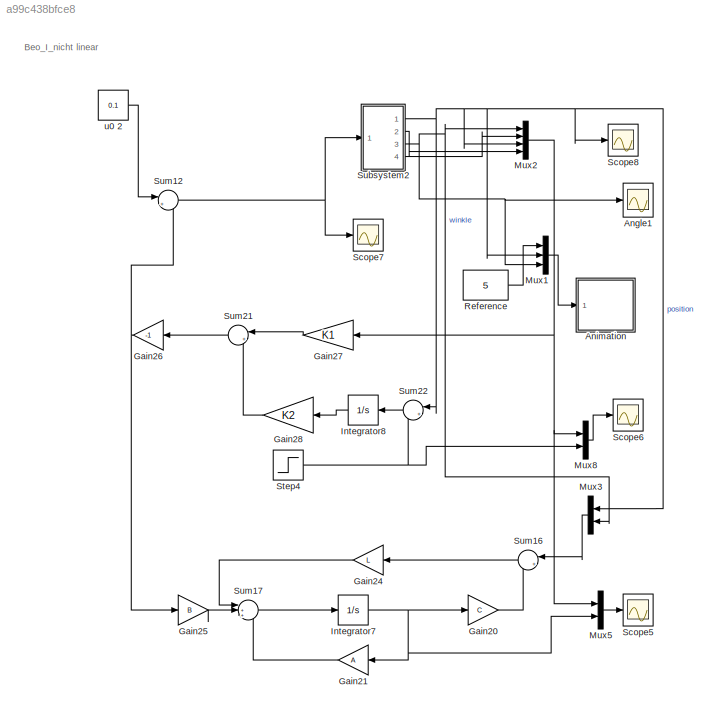
MODEL slx_a99c438bfce8
KIND model
CONFIG AbsTol = auto
CONFIG EnableMultiTasking = off
CONFIG FixedStep = auto
CONFIG MaxStep = auto
CONFIG MinStep = auto
CONFIG RelTol = 1e-3
CONFIG SampleTimeConstraint = Unconstrained
CONFIG Solver = VariableStepAuto
CONFIG SolverName = VariableStepAuto
CONFIG StartTime = 0.0
CONFIG StopTime = 10.0
BLOCK [Scope] Angle1
  Floating = off
  NumInputPorts = 1
  Ports = [1]
  ScopeSpecificationString = Simulink.scopes.TimeScopeBlockCfg('CurrentConfiguration', extmgr.ConfigurationSet(extmgr.Configuration('Core','General UI',true),extmgr.Configuration('Core','Source UI',true),extmgr.Configuration('Sources','WiredSimulink',true,'DataLoggingSaveFormat','Array','DataLoggingDecimation','1','DataLoggingDecimateData',true,'DataLoggingVariableName','ScopeData1'),extmgr.Configuration('Visuals','Time Domai...<+2049ch>
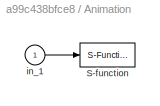
BLOCK [SubSystem] Animation
  Ports = [1]
  RequestExecContextInheritance = off
BLOCK [S-Function] Animation/S-function
  DeleteFcn = pendan([],[],[],'DeleteBlock');
  EnableBusSupport = off
  FunctionName = pendan
  Parameters = RefBlock
  Ports = [1]
  SFcnIsStateOwnerBlock = off
  SFunctionDeploymentMode = off
BLOCK [Inport] Animation/in_1
  IconDisplay = Port number
BLOCK [Gain] Gain20
  Gain = C
  Multiplication = Matrix(K*u)
  OutDataTypeStr = Inherit: Inherit via internal rule
  ParamDataTypeStr = Inherit: Inherit via internal rule
  SaturateOnIntegerOverflow = off
BLOCK [Gain] Gain21
  Gain = A
  Multiplication = Matrix(K*u)
  OutDataTypeStr = Inherit: Inherit via internal rule
  ParamDataTypeStr = Inherit: Inherit via internal rule
  SaturateOnIntegerOverflow = off
BLOCK [Gain] Gain24
  Gain = L
  Multiplication = Matrix(K*u)
  OutDataTypeStr = Inherit: Inherit via internal rule
  ParamDataTypeStr = Inherit: Inherit via internal rule
  SaturateOnIntegerOverflow = off
BLOCK [Gain] Gain25
  Gain = B
  Multiplication = Matrix(K*u)
  OutDataTypeStr = Inherit: Inherit via internal rule
  ParamDataTypeStr = Inherit: Inherit via internal rule
  SaturateOnIntegerOverflow = off
BLOCK [Gain] Gain26
  Gain = -1
  Multiplication = Matrix(K*u)
  OutDataTypeStr = Inherit: Inherit via internal rule
  ParamDataTypeStr = Inherit: Inherit via internal rule
  SaturateOnIntegerOverflow = off
BLOCK [Gain] Gain27
  Gain = K1
  Multiplication = Matrix(K*u)
  OutDataTypeStr = Inherit: Inherit via internal rule
  ParamDataTypeStr = Inherit: Inherit via internal rule
  SaturateOnIntegerOverflow = off
BLOCK [Gain] Gain28
  Gain = K2
  Multiplication = Matrix(K*u)
  OutDataTypeStr = Inherit: Inherit via internal rule
  ParamDataTypeStr = Inherit: Inherit via internal rule
  SaturateOnIntegerOverflow = off
BLOCK [Integrator] Integrator7
  Ports = [1, 1]
BLOCK [Integrator] Integrator8
  Ports = [1, 1]
BLOCK [Mux] Mux1
  DisplayOption = bar
  Inputs = 3
  Ports = [3, 1]
BLOCK [Mux] Mux2
  DisplayOption = bar
  Ports = [4, 1]
BLOCK [Mux] Mux3
  DisplayOption = bar
  Inputs = 2
  Ports = [2, 1]
BLOCK [Mux] Mux5
  DisplayOption = bar
  Inputs = 2
  Ports = [2, 1]
BLOCK [Mux] Mux8
  DisplayOption = bar
  Inputs = 2
  Ports = [2, 1]
BLOCK [Constant] Reference
  Value = 5
BLOCK [Scope] Scope5
  Floating = off
  NumInputPorts = 1
  Ports = [1]
  ScopeSpecificationString = Simulink.scopes.TimeScopeBlockCfg('CurrentConfiguration', extmgr.ConfigurationSet(extmgr.Configuration('Core','General UI',true),extmgr.Configuration('Core','Source UI',true),extmgr.Configuration('Sources','WiredSimulink',true,'DataLoggingVariableName','ScopeData2'),extmgr.Configuration('Visuals','Time Domain',true,'SerializedDisplays',{struct('MinYLimReal','-17.94656','MaxYLimReal','37.38872','YL...<+1692ch>
BLOCK [Scope] Scope6
  Floating = off
  NumInputPorts = 1
  Ports = [1]
  ScopeSpecificationString = Simulink.scopes.TimeScopeBlockCfg('CurrentConfiguration', extmgr.ConfigurationSet(extmgr.Configuration('Core','General UI',true),extmgr.Configuration('Core','Source UI',true),extmgr.Configuration('Sources','WiredSimulink',true,'DataLoggingVariableName','ScopeData3'),extmgr.Configuration('Visuals','Time Domain',true,'SerializedDisplays',{struct('MinYLimReal','-15.1272','MaxYLimReal','12.0145','YLab...<+1449ch>
BLOCK [Scope] Scope7
  Floating = off
  NumInputPorts = 1
  Ports = [1]
  ScopeSpecificationString = Simulink.scopes.TimeScopeBlockCfg('CurrentConfiguration', extmgr.ConfigurationSet(extmgr.Configuration('Core','General UI',true),extmgr.Configuration('Core','Source UI',true),extmgr.Configuration('Sources','WiredSimulink',true,'DataLoggingVariableName','ScopeData4'),extmgr.Configuration('Visuals','Time Domain',true,'SerializedDisplays',{struct('MinYLimReal','-29.40751','MaxYLimReal','74.95946','YL...<+1426ch>
BLOCK [Scope] Scope8
  Floating = off
  NumInputPorts = 1
  Ports = [1]
  ScopeSpecificationString = Simulink.scopes.TimeScopeBlockCfg('CurrentConfiguration', extmgr.ConfigurationSet(extmgr.Configuration('Core','General UI',true),extmgr.Configuration('Core','Source UI',true),extmgr.Configuration('Sources','WiredSimulink',true),extmgr.Configuration('Visuals','Time Domain',true,'SerializedDisplays',{struct('MinYLimReal','-0.63924','MaxYLimReal','5.61616','YLabelReal','','MinYLimMag','0.00000','MaxY...<+1384ch>
BLOCK [Step] Step4
  After = 5
  SampleTime = 0
  Time = 0
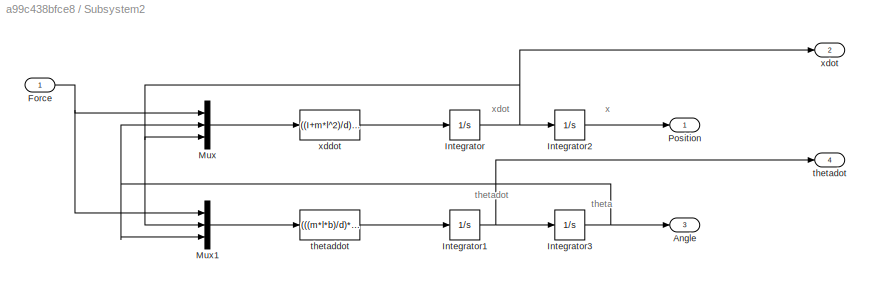
BLOCK [SubSystem] Subsystem2
  Ports = [1, 4]
  RequestExecContextInheritance = off
BLOCK [Outport] Subsystem2/Angle
  IconDisplay = Port number
  Port = 3
BLOCK [Inport] Subsystem2/Force
  IconDisplay = Port number
BLOCK [Integrator] Subsystem2/Integrator
  ContinuousStateAttributes = 'xdot'
  Ports = [1, 1]
BLOCK [Integrator] Subsystem2/Integrator1
  ContinuousStateAttributes = 'thetadot'
  Ports = [1, 1]
BLOCK [Integrator] Subsystem2/Integrator2
  ContinuousStateAttributes = 'x'
  Ports = [1, 1]
BLOCK [Integrator] Subsystem2/Integrator3
  ContinuousStateAttributes = 'theta'
  Ports = [1, 1]
BLOCK [Mux] Subsystem2/Mux
  DisplayOption = bar
  Inputs = 3
  Ports = [3, 1]
BLOCK [Mux] Subsystem2/Mux1
  DisplayOption = bar
  Inputs = 3
  Ports = [3, 1]
BLOCK [Outport] Subsystem2/Position
  IconDisplay = Port number
BLOCK [Fcn] Subsystem2/thetaddot
  Expr = (((m*l*b)/d)*u(2))+(((m*g*l*(M+m))/d)*u(3))-((m*l)/d)*u(1)
BLOCK [Outport] Subsystem2/thetadot
  IconDisplay = Port number
  Port = 4
BLOCK [Fcn] Subsystem2/xddot
  Expr = ((I+m*l^2)/d)*u(1)-((g*m^2*l^2)/d)*u(2)-((b*(I+m^2*l^2))/d)*u(3)
BLOCK [Outport] Subsystem2/xdot
  IconDisplay = Port number
  Port = 2
BLOCK [Sum] Sum12
  IconShape = round
  InputSameDT = off
  Inputs = |++
  OutDataTypeStr = Inherit: Inherit via internal rule
  Ports = [2, 1]
  SaturateOnIntegerOverflow = off
BLOCK [Sum] Sum16
  IconShape = round
  InputSameDT = off
  Inputs = |+-
  OutDataTypeStr = Inherit: Inherit via internal rule
  Ports = [2, 1]
  SaturateOnIntegerOverflow = off
BLOCK [Sum] Sum17
  IconShape = round
  InputSameDT = off
  Inputs = |+++
  OutDataTypeStr = Inherit: Inherit via internal rule
  Ports = [3, 1]
  SaturateOnIntegerOverflow = off
BLOCK [Sum] Sum21
  IconShape = round
  InputSameDT = off
  Inputs = |++
  OutDataTypeStr = Inherit: Inherit via internal rule
  Ports = [2, 1]
  SaturateOnIntegerOverflow = off
BLOCK [Sum] Sum22
  IconShape = round
  InputSameDT = off
  Inputs = |+-
  OutDataTypeStr = Inherit: Inherit via internal rule
  Ports = [2, 1]
  SaturateOnIntegerOverflow = off
BLOCK [Constant] u0 2
  Value = 0.1
ANNOTATION (root): Beo_I_nicht linear
ANNOTATION Subsystem2: theta
ANNOTATION Subsystem2: thetadot
ANNOTATION Subsystem2: x
ANNOTATION Subsystem2: xdot
LINE Animation/in_1:1 -> Animation/S-function:1
LINE Gain20:1 -> Sum16:2
LINE Gain21:1 -> Sum17:3
LINE Gain24:1 -> Sum17:1
LINE Gain25:1 -> Sum17:2
NET Gain26:1 -> Gain25:1, Sum12:2
LINE Gain27:1 -> Sum21:1
LINE Gain28:1 -> Sum21:2
NET Integrator7:1 -> Gain20:1, Gain21:1, Mux5:2
LINE Integrator8:1 -> Gain28:1
LINE Mux1:1 -> Animation:1
NET Mux2:1 -> Gain27:1, Mux5:1, Mux8:1
LINE Mux3:1 -> Sum16:1
LINE Mux5:1 -> Scope5:1
LINE Mux8:1 -> Scope6:1
LINE Reference:1 -> Mux1:1
NET Step4:1 -> Mux8:2, Sum22:2
NET Subsystem2/Force:1 -> Subsystem2/Mux1:1, Subsystem2/Mux:1
NET Subsystem2/Integrator1:1 -> Subsystem2/Integrator3:1, Subsystem2/thetadot:1
LINE Subsystem2/Integrator2:1 -> Subsystem2/Position:1
NET Subsystem2/Integrator3:1 -> Subsystem2/Angle:1, Subsystem2/Mux1:3, Subsystem2/Mux:2
NET Subsystem2/Integrator:1 -> Subsystem2/Integrator2:1, Subsystem2/Mux1:2, Subsystem2/Mux:3, Subsystem2/xdot:1
LINE Subsystem2/Mux1:1 -> Subsystem2/thetaddot:1
LINE Subsystem2/Mux:1 -> Subsystem2/xddot:1
LINE Subsystem2/thetaddot:1 -> Subsystem2/Integrator1:1
LINE Subsystem2/xddot:1 -> Subsystem2/Integrator:1
NET Subsystem2:1 -> Mux1:2, Mux2:3, Mux3:1, Scope8:1, Sum22:1
LINE Subsystem2:2 -> Mux2:4
NET Subsystem2:3 -> Angle1:1, Mux1:3, Mux2:1, Mux3:2
LINE Subsystem2:4 -> Mux2:2
NET Sum12:1 -> Scope7:1, Subsystem2:1
LINE Sum16:1 -> Gain24:1
LINE Sum17:1 -> Integrator7:1
LINE Sum21:1 -> Gain26:1
LINE Sum22:1 -> Integrator8:1
LINE u0 2:1 -> Sum12:1
note: NET lines group one-source signal fan-out (src -> all destinations, sorted); 1:1 wires keep LINE
